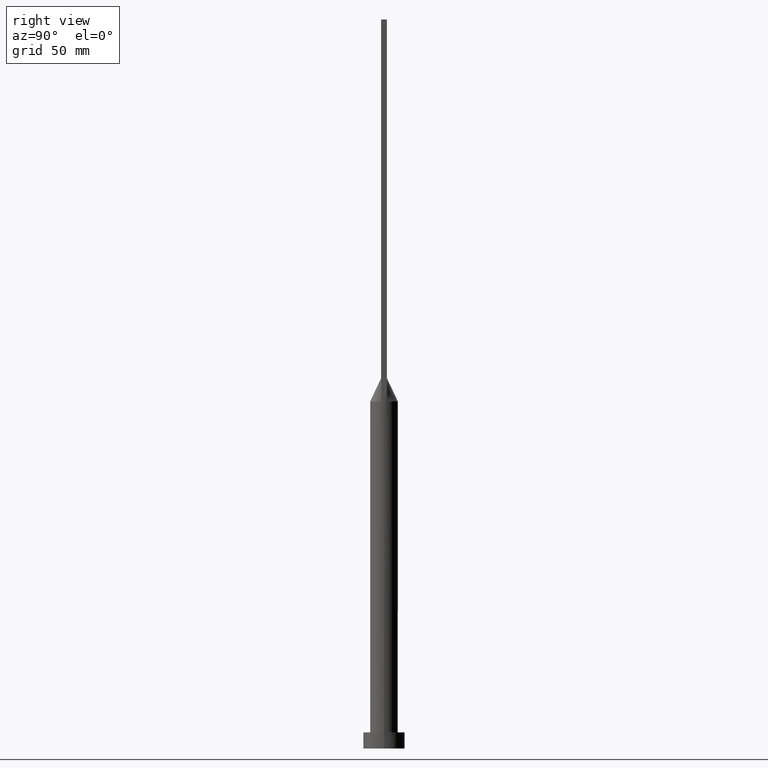
[diagram: clean part render]
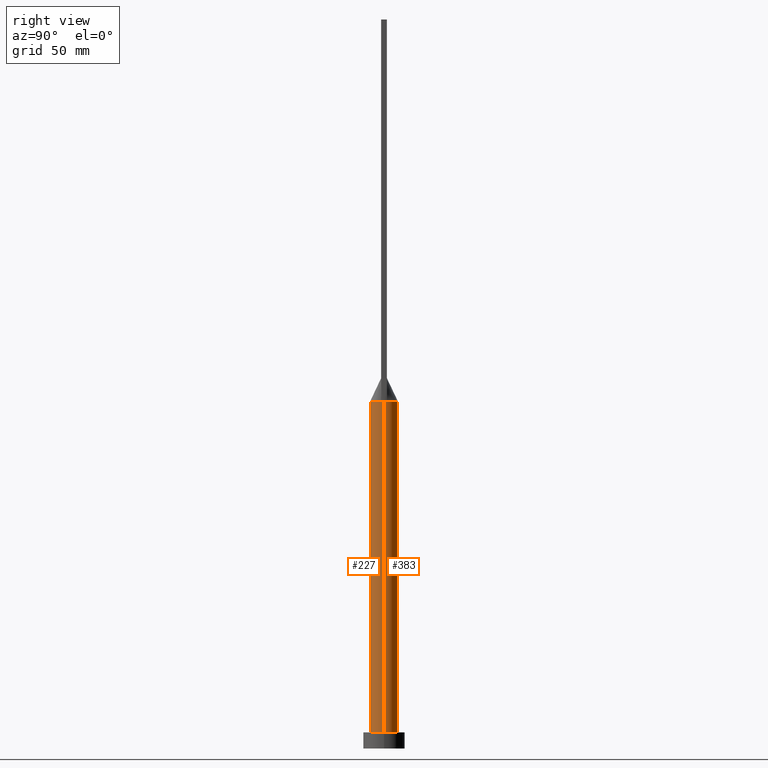
[diagram: same view with one multi-face feature highlighted, each face labeled with its STEP entity id]
A machine part, right view. The highlighted faces form ONE feature: a constant-radius fillet chain: 2 tangent blend faces with common blend radius 6 mm. The faces share edges in the B-rep.
Their STEP definitions:
[1] entity #227 (Cylinder):
#3 = CARTESIAN_POINT ( 'NONE',  ( 0.000000000000000000, 0.000000000000000000, 7.000000000000000000 ) ) ;
#11 = CIRCLE ( 'NONE', #28, 6.000000000000000888 ) ;
#20 = CIRCLE ( 'NONE', #209, 6.000000000000000888 ) ;
#28 = AXIS2_PLACEMENT_3D ( 'NONE', #3, #598, #52 ) ;
#36 = VERTEX_POINT ( 'NONE', #258 ) ;
#41 = CARTESIAN_POINT ( 'NONE',  ( 0.000000000000000000, 0.000000000000000000, 150.0000000000000000 ) ) ;
#46 = CARTESIAN_POINT ( 'NONE',  ( 0.000000000000000000, 0.000000000000000000, 150.0000000000000000 ) ) ;
#52 = DIRECTION ( 'NONE',  ( 1.000000000000000000, 0.000000000000000000, 0.000000000000000000 ) ) ;
#58 = EDGE_CURVE ( 'NONE', #391, #299, #20, .T. ) ;
#59 = CARTESIAN_POINT ( 'NONE',  ( 5.863058287509796074, -1.274577880478293901, 150.0000000000000000 ) ) ;
#61 = FACE_OUTER_BOUND ( 'NONE', #342, .T. ) ;
#62 = ORIENTED_EDGE ( 'NONE', *, *, #393, .T. ) ;
#71 = ORIENTED_EDGE ( 'NONE', *, *, #157, .T. ) ;
#72 = DIRECTION ( 'NONE',  ( -1.000000000000000000, 0.000000000000000000, 0.000000000000000000 ) ) ;
#86 = CIRCLE ( 'NONE', #145, 6.000000000000000888 ) ;
#88 = VERTEX_POINT ( 'NONE', #491 ) ;
#119 = CARTESIAN_POINT ( 'NONE',  ( -6.000000000000000888, 0.000000000000000000, 150.0000000000000000 ) ) ;
#120 = VERTEX_POINT ( 'NONE', #368 ) ;
#145 = AXIS2_PLACEMENT_3D ( 'NONE', #276, #421, #553 ) ;
#157 = EDGE_CURVE ( 'NONE', #391, #120, #287, .T. ) ;
#187 = DIRECTION ( 'NONE',  ( 0.000000000000000000, 0.000000000000000000, 1.000000000000000000 ) ) ;
#193 = VECTOR ( 'NONE', #473, 1000.000000000000000 ) ;
#207 = CARTESIAN_POINT ( 'NONE',  ( 0.000000000000000000, 0.000000000000000000, 150.0000000000000000 ) ) ;
#209 = AXIS2_PLACEMENT_3D ( 'NONE', #41, #447, #444 ) ;
#210 = AXIS2_PLACEMENT_3D ( 'NONE', #207, #524, #72 ) ;
#219 = VECTOR ( 'NONE', #432, 1000.000000000000000 ) ;
#227 = ADVANCED_FACE ( 'NONE', ( #61 ), #246, .T. ) ;
#229 = ORIENTED_EDGE ( 'NONE', *, *, #501, .F. ) ;
#243 = EDGE_CURVE ( 'NONE', #36, #88, #244, .T. ) ;
#244 = LINE ( 'NONE', #425, #193 ) ;
#246 = CYLINDRICAL_SURFACE ( 'NONE', #210, 6.000000000000000888 ) ;
#258 = CARTESIAN_POINT ( 'NONE',  ( 6.000000000000000888, 6.923844231069229210E-17, 149.9999999999999716 ) ) ;
#276 = CARTESIAN_POINT ( 'NONE',  ( 0.000000000000000000, 0.000000000000000000, 150.0000000000000000 ) ) ;
#287 = LINE ( 'NONE', #119, #219 ) ;
#299 = VERTEX_POINT ( 'NONE', #484 ) ;
#341 = CIRCLE ( 'NONE', #390, 6.000000000000000888 ) ;
#342 = EDGE_LOOP ( 'NONE', ( #534, #593, #229, #583, #71, #62 ) ) ;
#368 = CARTESIAN_POINT ( 'NONE',  ( -6.000000000000000888, 0.000000000000000000, 7.000000000000000000 ) ) ;
#390 = AXIS2_PLACEMENT_3D ( 'NONE', #46, #187, #409 ) ;
#391 = VERTEX_POINT ( 'NONE', #510 ) ;
#393 = EDGE_CURVE ( 'NONE', #120, #88, #11, .T. ) ;
#409 = DIRECTION ( 'NONE',  ( 1.000000000000000000, -9.769962616701377556E-15, 0.000000000000000000 ) ) ;
#421 = DIRECTION ( 'NONE',  ( 0.000000000000000000, 0.000000000000000000, 1.000000000000000000 ) ) ;
#425 = CARTESIAN_POINT ( 'NONE',  ( 6.000000000000000888, 7.347880794884120722E-16, 150.0000000000000000 ) ) ;
#432 = DIRECTION ( 'NONE',  ( -0.000000000000000000, -0.000000000000000000, -1.000000000000000000 ) ) ;
#444 = DIRECTION ( 'NONE',  ( 1.000000000000000000, 0.000000000000000000, 0.000000000000000000 ) ) ;
#447 = DIRECTION ( 'NONE',  ( 0.000000000000000000, 0.000000000000000000, 1.000000000000000000 ) ) ;
#473 = DIRECTION ( 'NONE',  ( -0.000000000000000000, -0.000000000000000000, -1.000000000000000000 ) ) ;
#484 = CARTESIAN_POINT ( 'NONE',  ( -5.863065408737084816, -1.274579424051652365, 150.0000000000000000 ) ) ;
#491 = CARTESIAN_POINT ( 'NONE',  ( 6.000000000000000888, 7.347880794884120722E-16, 7.000000000000000000 ) ) ;
#501 = EDGE_CURVE ( 'NONE', #299, #573, #86, .T. ) ;
#510 = CARTESIAN_POINT ( 'NONE',  ( -6.000000000000000888, -3.688698462745542764E-16, 149.9999999999999716 ) ) ;
#524 = DIRECTION ( 'NONE',  ( -0.000000000000000000, -0.000000000000000000, -1.000000000000000000 ) ) ;
#534 = ORIENTED_EDGE ( 'NONE', *, *, #243, .F. ) ;
#551 = EDGE_CURVE ( 'NONE', #573, #36, #341, .T. ) ;
#553 = DIRECTION ( 'NONE',  ( 1.000000000000000000, 0.000000000000000000, 0.000000000000000000 ) ) ;
#573 = VERTEX_POINT ( 'NONE', #59 ) ;
#583 = ORIENTED_EDGE ( 'NONE', *, *, #58, .F. ) ;
#593 = ORIENTED_EDGE ( 'NONE', *, *, #551, .F. ) ;
#598 = DIRECTION ( 'NONE',  ( 0.000000000000000000, 0.000000000000000000, 1.000000000000000000 ) ) ;
[2] entity #383 (Cylinder):
#18 = CARTESIAN_POINT ( 'NONE',  ( 1.966519853258819062, 5.681792876789066860, 150.0000000000000000 ) ) ;
#26 = CARTESIAN_POINT ( 'NONE',  ( -1.966519853258818173, 5.681792876789067748, 150.0000000000000000 ) ) ;
#29 = CARTESIAN_POINT ( 'NONE',  ( -5.038190104264874236, 3.311355329404293446, 149.9999999999999716 ) ) ;
#36 = VERTEX_POINT ( 'NONE', #258 ) ;
#67 = CIRCLE ( 'NONE', #485, 6.000000000000000888 ) ;
#88 = VERTEX_POINT ( 'NONE', #491 ) ;
#91 = ORIENTED_EDGE ( 'NONE', *, *, #199, .F. ) ;
#100 = DIRECTION ( 'NONE',  ( -0.000000000000000000, -0.000000000000000000, -1.000000000000000000 ) ) ;
#107 = CIRCLE ( 'NONE', #475, 6.000000000000000888 ) ;
#112 = CARTESIAN_POINT ( 'NONE',  ( -5.586898165904732316, 2.266054396544148197, 150.0000000000000000 ) ) ;
#117 = CARTESIAN_POINT ( 'NONE',  ( -4.659826596530312948, 3.842755878357679844, 150.0000000000000000 ) ) ;
#119 = CARTESIAN_POINT ( 'NONE',  ( -6.000000000000000888, 0.000000000000000000, 150.0000000000000000 ) ) ;
#120 = VERTEX_POINT ( 'NONE', #368 ) ;
#126 = DIRECTION ( 'NONE',  ( 1.000000000000000000, 0.000000000000000000, 0.000000000000000000 ) ) ;
#148 = CARTESIAN_POINT ( 'NONE',  ( 0.000000000000000000, 0.000000000000000000, 150.0000000000000000 ) ) ;
#149 = EDGE_CURVE ( 'NONE', #201, #391, #107, .T. ) ;
#151 = CYLINDRICAL_SURFACE ( 'NONE', #275, 6.000000000000000888 ) ;
#157 = EDGE_CURVE ( 'NONE', #391, #120, #287, .T. ) ;
#158 = CARTESIAN_POINT ( 'NONE',  ( -0.4029827085191223790, 5.999999999999998224, 150.0000000000000284 ) ) ;
#160 = CARTESIAN_POINT ( 'NONE',  ( 5.759267569818392829, 1.752014689090955590, 150.0000000000000568 ) ) ;
#192 = DIRECTION ( 'NONE',  ( 1.000000000000000000, 0.000000000000000000, 0.000000000000000000 ) ) ;
#193 = VECTOR ( 'NONE', #473, 1000.000000000000000 ) ;
#199 = EDGE_CURVE ( 'NONE', #502, #201, #455, .T. ) ;
#201 = VERTEX_POINT ( 'NONE', #339 ) ;
#202 = DIRECTION ( 'NONE',  ( 1.000000000000000000, 0.000000000000000000, 0.000000000000000000 ) ) ;
#204 = CARTESIAN_POINT ( 'NONE',  ( 1.587717880441007479, 5.799853445840305710, 150.0000000000000000 ) ) ;
#213 = CARTESIAN_POINT ( 'NONE',  ( 0.000000000000000000, 0.000000000000000000, 150.0000000000000000 ) ) ;
#219 = VECTOR ( 'NONE', #432, 1000.000000000000000 ) ;
#226 = DIRECTION ( 'NONE',  ( 0.000000000000000000, 0.000000000000000000, 1.000000000000000000 ) ) ;
#243 = EDGE_CURVE ( 'NONE', #36, #88, #244, .T. ) ;
#244 = LINE ( 'NONE', #425, #193 ) ;
#249 = DIRECTION ( 'NONE',  ( 0.000000000000000000, 0.000000000000000000, 1.000000000000000000 ) ) ;
#254 = ORIENTED_EDGE ( 'NONE', *, *, #293, .F. ) ;
#258 = CARTESIAN_POINT ( 'NONE',  ( 6.000000000000000888, 6.923844231069229210E-17, 149.9999999999999716 ) ) ;
#265 = DIRECTION ( 'NONE',  ( 0.000000000000000000, 0.000000000000000000, 1.000000000000000000 ) ) ;
#273 = EDGE_LOOP ( 'NONE', ( #254, #474, #580, #408, #597, #91 ) ) ;
#275 = AXIS2_PLACEMENT_3D ( 'NONE', #148, #100, #466 ) ;
#284 = CIRCLE ( 'NONE', #361, 6.000000000000000888 ) ;
#287 = LINE ( 'NONE', #119, #219 ) ;
#289 = CARTESIAN_POINT ( 'NONE',  ( -5.759267569818392829, 1.752014689090956256, 150.0000000000000000 ) ) ;
#293 = EDGE_CURVE ( 'NONE', #36, #502, #284, .T. ) ;
#295 = CARTESIAN_POINT ( 'NONE',  ( 4.659826596530313836, 3.842755878357678068, 150.0000000000000284 ) ) ;
#325 = FACE_OUTER_BOUND ( 'NONE', #273, .T. ) ;
#329 = CARTESIAN_POINT ( 'NONE',  ( 5.863058183536806744, 1.274577865986262326, 150.0000000000000000 ) ) ;
#336 = CARTESIAN_POINT ( 'NONE',  ( -0.8058840496048931268, 5.959001506938069070, 150.0000000000000000 ) ) ;
#339 = CARTESIAN_POINT ( 'NONE',  ( -5.863058287509749888, 1.274577880478287017, 150.0000000000000000 ) ) ;
#340 = CARTESIAN_POINT ( 'NONE',  ( -3.037647739454304663, 5.231880992812857123, 150.0000000000000568 ) ) ;
#343 = CARTESIAN_POINT ( 'NONE',  ( 0.000000000000000000, 0.000000000000000000, 150.0000000000000000 ) ) ;
#361 = AXIS2_PLACEMENT_3D ( 'NONE', #213, #265, #126 ) ;
#368 = CARTESIAN_POINT ( 'NONE',  ( -6.000000000000000888, 0.000000000000000000, 7.000000000000000000 ) ) ;
#383 = ADVANCED_FACE ( 'NONE', ( #325 ), #151, .T. ) ;
#384 = CARTESIAN_POINT ( 'NONE',  ( 3.660567483996337579, 4.804269179125218336, 150.0000000000000284 ) ) ;
#386 = CARTESIAN_POINT ( 'NONE',  ( 5.586898165904734093, 2.266054396544147309, 150.0000000000000000 ) ) ;
#391 = VERTEX_POINT ( 'NONE', #510 ) ;
#408 = ORIENTED_EDGE ( 'NONE', *, *, #157, .F. ) ;
#425 = CARTESIAN_POINT ( 'NONE',  ( 6.000000000000000888, 7.347880794884120722E-16, 150.0000000000000000 ) ) ;
#432 = DIRECTION ( 'NONE',  ( -0.000000000000000000, -0.000000000000000000, -1.000000000000000000 ) ) ;
#434 = CARTESIAN_POINT ( 'NONE',  ( -1.587717880441007035, 5.799853445840308375, 150.0000000000000568 ) ) ;
#455 = B_SPLINE_CURVE_WITH_KNOTS ( 'NONE', 3,
 ( #522, #160, #386, #574, #295, #384, #482, #18, #204, #572, #577, #158, #336, #434, #26, #340, #579, #117, #29, #112, #289, #479 ),
 .UNSPECIFIED., .F., .F.,
 ( 4, 2, 2, 2, 2, 2, 2, 2, 2, 2, 4 ),
 ( 0.000000000000000000, 0.1249999999999999722, 0.2499999999999999445, 0.3749999999999999445, 0.4374999999999999445, 0.4999999999999998890, 0.5624999999999998890, 0.6249999999999998890, 0.7499999999999997780, 0.8749999999999998890, 1.000000000000000000 ),
 .UNSPECIFIED. ) ;
#466 = DIRECTION ( 'NONE',  ( -1.000000000000000000, 0.000000000000000000, 0.000000000000000000 ) ) ;
#473 = DIRECTION ( 'NONE',  ( -0.000000000000000000, -0.000000000000000000, -1.000000000000000000 ) ) ;
#474 = ORIENTED_EDGE ( 'NONE', *, *, #243, .T. ) ;
#475 = AXIS2_PLACEMENT_3D ( 'NONE', #343, #249, #202 ) ;
#479 = CARTESIAN_POINT ( 'NONE',  ( -5.863058287509749888, 1.274577880478287017, 150.0000000000000000 ) ) ;
#482 = CARTESIAN_POINT ( 'NONE',  ( 3.037647739454305995, 5.231880992812856235, 150.0000000000000568 ) ) ;
#485 = AXIS2_PLACEMENT_3D ( 'NONE', #506, #226, #192 ) ;
#489 = EDGE_CURVE ( 'NONE', #88, #120, #67, .T. ) ;
#491 = CARTESIAN_POINT ( 'NONE',  ( 6.000000000000000888, 7.347880794884120722E-16, 7.000000000000000000 ) ) ;
#502 = VERTEX_POINT ( 'NONE', #329 ) ;
#506 = CARTESIAN_POINT ( 'NONE',  ( 0.000000000000000000, 0.000000000000000000, 7.000000000000000000 ) ) ;
#510 = CARTESIAN_POINT ( 'NONE',  ( -6.000000000000000888, -3.688698462745542764E-16, 149.9999999999999716 ) ) ;
#522 = CARTESIAN_POINT ( 'NONE',  ( 5.863058183536806744, 1.274577865986262326, 150.0000000000000000 ) ) ;
#572 = CARTESIAN_POINT ( 'NONE',  ( 0.8058840496048939039, 5.959001506938069070, 150.0000000000000000 ) ) ;
#574 = CARTESIAN_POINT ( 'NONE',  ( 5.038190104264874236, 3.311355329404293002, 150.0000000000000284 ) ) ;
#577 = CARTESIAN_POINT ( 'NONE',  ( 0.4029827085191226566, 5.999999999999999112, 150.0000000000000284 ) ) ;
#579 = CARTESIAN_POINT ( 'NONE',  ( -3.660567483996338023, 4.804269179125219225, 150.0000000000000284 ) ) ;
#580 = ORIENTED_EDGE ( 'NONE', *, *, #489, .T. ) ;
#597 = ORIENTED_EDGE ( 'NONE', *, *, #149, .F. ) ;